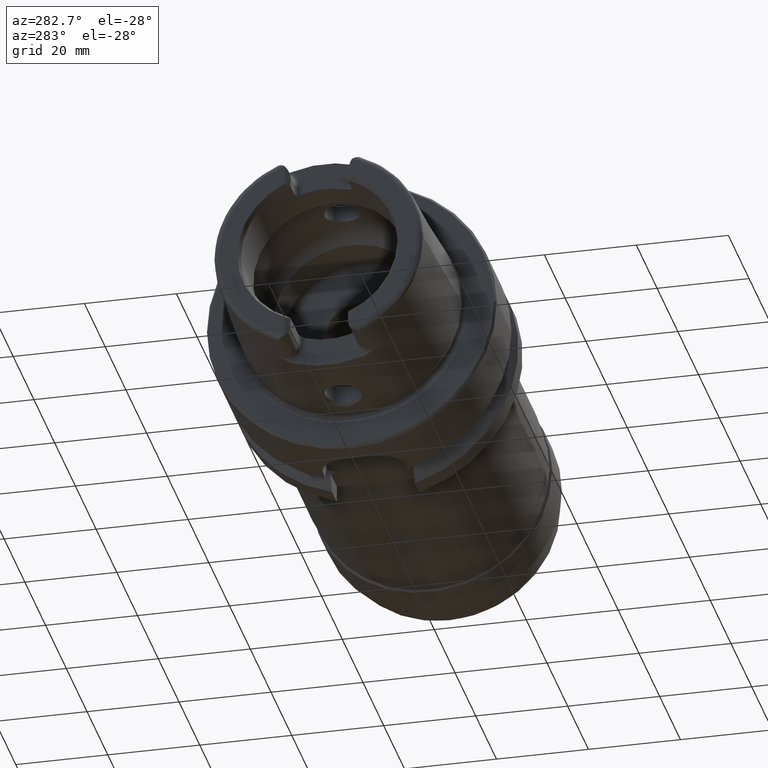
[diagram: clean part render]
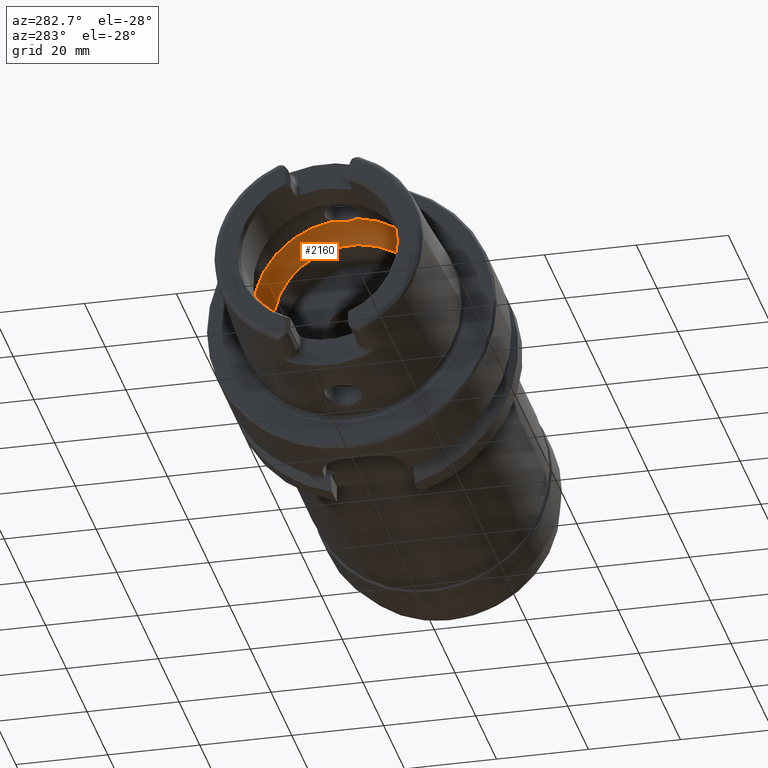
[diagram: same view with one face highlighted and labeled with its STEP entity id]
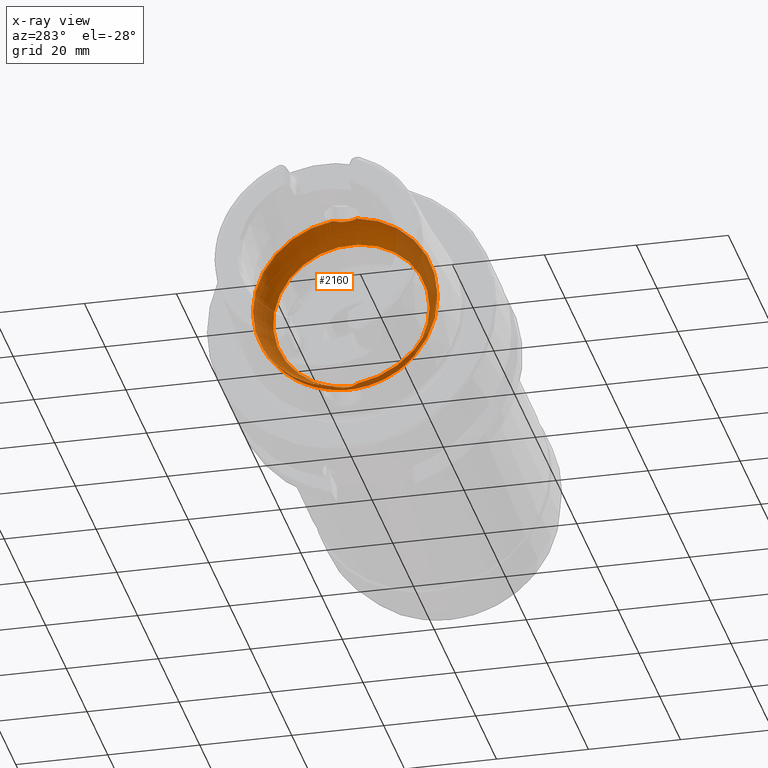
[diagram: x-ray of the same camera — body ghosted, the highlighted face saturated]
A machine part, auxiliary view. The second image highlights one B-rep face of the part: STEP entity #2160.
The next image is the same camera in x-ray: the body ghosted, the highlighted face saturated — about 31% of this face is hidden behind the body in this view.
In plain terms, the highlighted toroidal blend (fillet) surface has major radius 12 mm and minor (blend) radius 8 mm.
Its self-contained STEP definition (entity closure, byte-faithful):
#59=B_SPLINE_CURVE_WITH_KNOTS('',3,(#3818,#3819,#3820,#3821,#3822,#3823,
#3824,#3825,#3826,#3827,#3828,#3829),.UNSPECIFIED.,.F.,.F.,(4,2,2,2,2,4),
(-0.576707489927124,-0.455716402860971,-0.365368737325141,-0.320549741072208,
-0.288976283252817,-0.288398128098771),.UNSPECIFIED.);
#61=B_SPLINE_CURVE_WITH_KNOTS('',3,(#3862,#3863,#3864,#3865,#3866,#3867,
#3868,#3869,#3870,#3871),.UNSPECIFIED.,.F.,.F.,(4,2,2,2,4),(-0.288398128098771,
-0.257600392372179,-0.213718373510583,-0.137948403428913,0.),
 .UNSPECIFIED.);
#64=B_SPLINE_CURVE_WITH_KNOTS('',3,(#3982,#3983,#3984,#3985,#3986,#3987,
#3988,#3989,#3990,#3991,#3992,#3993),.UNSPECIFIED.,.F.,.F.,(4,2,2,2,2,4),
(-0.576707489927132,-0.455716402860962,-0.365368737325128,-0.320549741072191,
-0.288976283252795,-0.288398128098748),.UNSPECIFIED.);
#66=B_SPLINE_CURVE_WITH_KNOTS('',3,(#4026,#4027,#4028,#4029,#4030,#4031,
#4032,#4033,#4034,#4035),.UNSPECIFIED.,.F.,.F.,(4,2,2,2,4),(-0.288398128098748,
-0.257600392372146,-0.213718373510557,-0.137948403428907,0.),
 .UNSPECIFIED.);
#177=TOROIDAL_SURFACE('',#2382,12.,8.);
#238=FACE_OUTER_BOUND('',#369,.T.);
#369=EDGE_LOOP('',(#1627,#1628,#1629,#1630,#1631,#1632,#1633,#1634,#1635,
#1636,#1637));
#746=CIRCLE('',#2377,20.);
#749=CIRCLE('',#2380,20.);
#750=CIRCLE('',#2381,20.);
#751=CIRCLE('',#2383,17.);
#752=CIRCLE('',#2384,17.);
#753=CIRCLE('',#2385,8.);
#928=VERTEX_POINT('',#3815);
#929=VERTEX_POINT('',#3817);
#930=VERTEX_POINT('',#3830);
#933=VERTEX_POINT('',#3980);
#934=VERTEX_POINT('',#3981);
#935=VERTEX_POINT('',#3994);
#936=VERTEX_POINT('',#4038);
#939=VERTEX_POINT('',#4048);
#940=VERTEX_POINT('',#4049);
#1185=EDGE_CURVE('',#929,#928,#59,.T.);
#1187=EDGE_CURVE('',#928,#930,#61,.T.);
#1191=EDGE_CURVE('',#933,#934,#64,.T.);
#1193=EDGE_CURVE('',#934,#935,#66,.T.);
#1195=EDGE_CURVE('',#936,#933,#746,.T.);
#1199=EDGE_CURVE('',#930,#936,#749,.T.);
#1200=EDGE_CURVE('',#935,#929,#750,.T.);
#1201=EDGE_CURVE('',#939,#940,#751,.T.);
#1202=EDGE_CURVE('',#940,#939,#752,.T.);
#1203=EDGE_CURVE('',#940,#928,#753,.T.);
#1627=ORIENTED_EDGE('',*,*,#1201,.F.);
#1628=ORIENTED_EDGE('',*,*,#1202,.F.);
#1629=ORIENTED_EDGE('',*,*,#1203,.T.);
#1630=ORIENTED_EDGE('',*,*,#1187,.T.);
#1631=ORIENTED_EDGE('',*,*,#1199,.T.);
#1632=ORIENTED_EDGE('',*,*,#1195,.T.);
#1633=ORIENTED_EDGE('',*,*,#1191,.T.);
#1634=ORIENTED_EDGE('',*,*,#1193,.T.);
#1635=ORIENTED_EDGE('',*,*,#1200,.T.);
#1636=ORIENTED_EDGE('',*,*,#1185,.T.);
#1637=ORIENTED_EDGE('',*,*,#1203,.F.);
#2160=ADVANCED_FACE('',(#238),#177,.F.);
#2377=AXIS2_PLACEMENT_3D('',#4039,#2807,#2808);
#2380=AXIS2_PLACEMENT_3D('',#4045,#2814,#2815);
#2381=AXIS2_PLACEMENT_3D('',#4046,#2816,#2817);
#2382=AXIS2_PLACEMENT_3D('',#4047,#2818,#2819);
#2383=AXIS2_PLACEMENT_3D('',#4050,#2820,#2821);
#2384=AXIS2_PLACEMENT_3D('',#4051,#2822,#2823);
#2385=AXIS2_PLACEMENT_3D('',#4052,#2824,#2825);
#2807=DIRECTION('center_axis',(-1.,0.,0.));
#2808=DIRECTION('ref_axis',(0.,0.,1.));
#2814=DIRECTION('center_axis',(-1.,0.,0.));
#2815=DIRECTION('ref_axis',(0.,0.,1.));
#2816=DIRECTION('center_axis',(-1.,0.,0.));
#2817=DIRECTION('ref_axis',(0.,0.,1.));
#2818=DIRECTION('center_axis',(-1.,0.,0.));
#2819=DIRECTION('ref_axis',(0.,0.,1.));
#2820=DIRECTION('center_axis',(-1.,0.,0.));
#2821=DIRECTION('ref_axis',(0.,0.,1.));
#2822=DIRECTION('center_axis',(-1.,0.,0.));
#2823=DIRECTION('ref_axis',(0.,0.,1.));
#2824=DIRECTION('center_axis',(0.,1.,-1.22464679914735E-16));
#2825=DIRECTION('ref_axis',(0.,-1.22464679914735E-16,-1.));
#3815=CARTESIAN_POINT('',(-5.25000000000001,-2.38754063673609E-16,-19.9307944116589));
#3817=CARTESIAN_POINT('',(-6.3,2.60240273593462,-19.8299646999182));
#3818=CARTESIAN_POINT('Ctrl Pts',(-6.30000000000001,2.60240273593462,-19.8299646999182));
#3819=CARTESIAN_POINT('Ctrl Pts',(-6.02135700807982,2.3133098650288,-19.8679040553113));
#3820=CARTESIAN_POINT('Ctrl Pts',(-5.79033009489733,1.98064918550535,-19.890591169119));
#3821=CARTESIAN_POINT('Ctrl Pts',(-5.48675593472391,1.34543685595405,-19.9160762142355));
#3822=CARTESIAN_POINT('Ctrl Pts',(-5.39007954405642,1.05909527261751,-19.9223713998338));
#3823=CARTESIAN_POINT('Ctrl Pts',(-5.29825184053116,0.617966692523924,-19.9280498303184));
#3824=CARTESIAN_POINT('Ctrl Pts',(-5.27657003878054,0.469994704559157,-19.9292919985393));
#3825=CARTESIAN_POINT('Ctrl Pts',(-5.25476109400056,0.216252544174993,-19.9305312191434));
#3826=CARTESIAN_POINT('Ctrl Pts',(-5.25016676806113,0.111043433894866,-19.9307851133249));
#3827=CARTESIAN_POINT('Ctrl Pts',(-5.25000148602981,0.00385492015310945,
-19.9307943288045));
#3828=CARTESIAN_POINT('Ctrl Pts',(-5.25000000000001,0.00192745284672889,
-19.9307944116589));
#3829=CARTESIAN_POINT('Ctrl Pts',(-5.25000000000001,-9.32466898785687E-16,
-19.9307944116589));
#3830=CARTESIAN_POINT('',(-6.3,-2.60240273593462,-19.8299646999182));
#3862=CARTESIAN_POINT('Ctrl Pts',(-5.25000000000001,-9.19403442267708E-16,
-19.9307944116589));
#3863=CARTESIAN_POINT('Ctrl Pts',(-5.25000000000001,-0.102673448439594,
-19.9307944116589));
#3864=CARTESIAN_POINT('Ctrl Pts',(-5.25421684930313,-0.205305866402778,
-19.9305613545514));
#3865=CARTESIAN_POINT('Ctrl Pts',(-5.27464110625334,-0.45343482711948,-19.9294026077432));
#3866=CARTESIAN_POINT('Ctrl Pts',(-5.29516467443997,-0.598409706843585,
-19.9282296486912));
#3867=CARTESIAN_POINT('Ctrl Pts',(-5.37406649070666,-0.989396372030681,
-19.9233785291009));
#3868=CARTESIAN_POINT('Ctrl Pts',(-5.44891810120347,-1.23128278857668,-19.9185486409462));
#3869=CARTESIAN_POINT('Ctrl Pts',(-5.72687568605107,-1.88691112132013,-19.8966847278005));
#3870=CARTESIAN_POINT('Ctrl Pts',(-5.98230637151863,-2.27279472213439,-19.8732210954731));
#3871=CARTESIAN_POINT('Ctrl Pts',(-6.30000000000001,-2.60240273593462,-19.8299646999182));
#3980=CARTESIAN_POINT('',(-6.3,-2.60240273593462,19.8299646999182));
#3981=CARTESIAN_POINT('',(-5.25,1.3311706820854E-15,19.9307944116589));
#3982=CARTESIAN_POINT('Ctrl Pts',(-6.3,-2.60240273593462,19.8299646999182));
#3983=CARTESIAN_POINT('Ctrl Pts',(-6.02135700807986,-2.31330986502885,19.8679040553113));
#3984=CARTESIAN_POINT('Ctrl Pts',(-5.79033009489738,-1.98064918550547,19.890591169119));
#3985=CARTESIAN_POINT('Ctrl Pts',(-5.48675593472391,-1.34543685595408,19.9160762142355));
#3986=CARTESIAN_POINT('Ctrl Pts',(-5.39007954405642,-1.05909527261751,19.9223713998338));
#3987=CARTESIAN_POINT('Ctrl Pts',(-5.29825184053116,-0.617966692523945,
19.9280498303184));
#3988=CARTESIAN_POINT('Ctrl Pts',(-5.27657003878054,-0.469994704559178,
19.9292919985393));
#3989=CARTESIAN_POINT('Ctrl Pts',(-5.25476109400056,-0.216252544174991,
19.9305312191434));
#3990=CARTESIAN_POINT('Ctrl Pts',(-5.25016676806113,-0.111043433894851,
19.9307851133249));
#3991=CARTESIAN_POINT('Ctrl Pts',(-5.2500014860298,-0.0038549201531106,
19.9307943288045));
#3992=CARTESIAN_POINT('Ctrl Pts',(-5.25,-0.00192745284672882,19.9307944116589));
#3993=CARTESIAN_POINT('Ctrl Pts',(-5.25,2.23839005029248E-15,19.9307944116589));
#3994=CARTESIAN_POINT('',(-6.3,2.60240273593462,19.8299646999182));
#4026=CARTESIAN_POINT('Ctrl Pts',(-5.25,2.23779328401008E-15,19.9307944116589));
#4027=CARTESIAN_POINT('Ctrl Pts',(-5.25,0.102673448439597,19.9307944116589));
#4028=CARTESIAN_POINT('Ctrl Pts',(-5.25421684930313,0.205305866402779,19.9305613545514));
#4029=CARTESIAN_POINT('Ctrl Pts',(-5.27464110625333,0.4534348271194,19.9294026077432));
#4030=CARTESIAN_POINT('Ctrl Pts',(-5.29516467443996,0.598409706843549,19.9282296486912));
#4031=CARTESIAN_POINT('Ctrl Pts',(-5.37406649070666,0.989396372030738,19.9233785291009));
#4032=CARTESIAN_POINT('Ctrl Pts',(-5.44891810120348,1.2312827885767,19.9185486409462));
#4033=CARTESIAN_POINT('Ctrl Pts',(-5.72687568605108,1.88691112132016,19.8966847278005));
#4034=CARTESIAN_POINT('Ctrl Pts',(-5.98230637151864,2.2727947221344,19.8732210954731));
#4035=CARTESIAN_POINT('Ctrl Pts',(-6.3,2.60240273593462,19.8299646999182));
#4038=CARTESIAN_POINT('',(-6.3,-20.,2.44929359829471E-15));
#4039=CARTESIAN_POINT('Origin',(-6.3,0.,0.));
#4045=CARTESIAN_POINT('Origin',(-6.3,0.,0.));
#4046=CARTESIAN_POINT('Origin',(-6.3,0.,0.));
#4047=CARTESIAN_POINT('Origin',(-6.3,0.,0.));
#4048=CARTESIAN_POINT('',(-0.0550020016016028,-17.,2.0818995585505E-15));
#4049=CARTESIAN_POINT('',(-0.0550020016016028,-2.0818995585505E-15,-17.));
#4050=CARTESIAN_POINT('Origin',(-0.0550020016016028,0.,0.));
#4051=CARTESIAN_POINT('Origin',(-0.0550020016016028,0.,0.));
#4052=CARTESIAN_POINT('Origin',(-6.3,-1.46957615897682E-15,-12.));